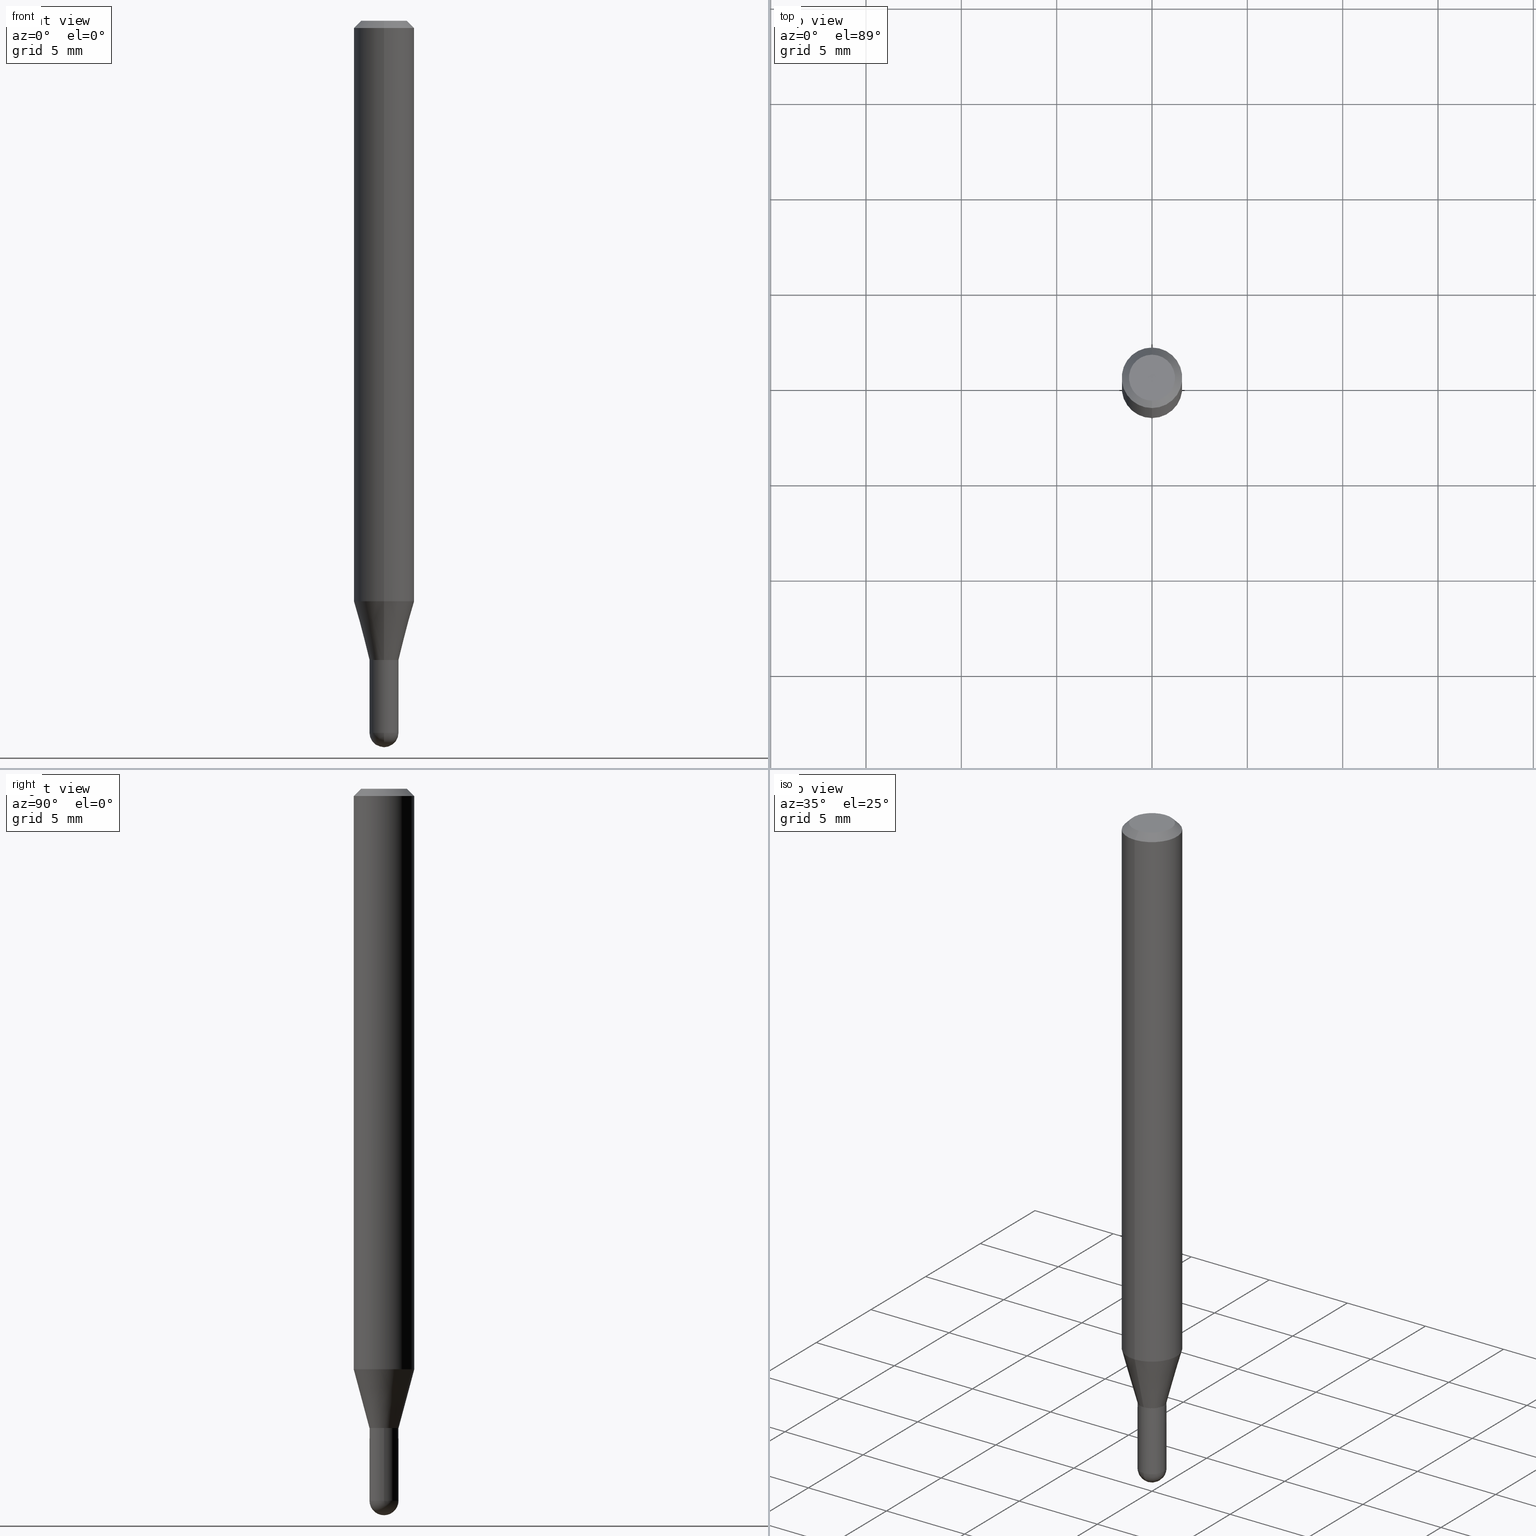
[diagram: canonical four-view strip — front | top / right | iso, engineering-drawing reading convention]
A machine part, canonical four-view strip (front | top / right | iso — engineering-drawing reading convention). The complete STEP part file that produces these views, byte-faithful:
ISO-10303-21;
HEADER;
FILE_DESCRIPTION (( 'STEP AP203' ),
    '1' );
FILE_NAME ('01483.STEP',
    '2024-03-07T21:32:08',
    ( '' ),
    ( '' ),
    'SwSTEP 2.0',
    'SolidWorks 2023',
    '' );
FILE_SCHEMA (( 'CONFIG_CONTROL_DESIGN' ));
ENDSEC;

DATA;
#1 = PERSON_AND_ORGANIZATION ( #431, #402 ) ;
#2 = CIRCLE ( 'NONE', #208, 0.03000000000000020012 ) ;
#3 = VECTOR ( 'NONE', #347, 39.37007874015747433 ) ;
#4 = DATE_AND_TIME ( #91, #388 ) ;
#5 = EDGE_CURVE ( 'NONE', #104, #284, #362, .T. ) ;
#6 = VERTEX_POINT ( 'NONE', #336 ) ;
#7 = LINE ( 'NONE', #310, #445 ) ;
#8 = PERSON_AND_ORGANIZATION_ROLE ( 'classification_officer' ) ;
#9 = DIRECTION ( 'NONE',  ( -6.982962677686265922E-15, -1.000000000000000000, 0.000000000000000000 ) ) ;
#10 = CC_DESIGN_PERSON_AND_ORGANIZATION_ASSIGNMENT ( #231, #8, ( #446 ) ) ;
#11 = ORIENTED_EDGE ( 'NONE', *, *, #369, .T. ) ;
#12 = ORIENTED_EDGE ( 'NONE', *, *, #25, .T. ) ;
#13 = EDGE_CURVE ( 'NONE', #86, #257, #282, .T. ) ;
#14 = CIRCLE ( 'NONE', #179, 0.02999999999999992256 ) ;
#15 = DIRECTION ( 'NONE',  ( -2.445459950379643973E-29, 3.491494020860651909E-15, 1.000000000000000000 ) ) ;
#16 = CC_DESIGN_APPROVAL ( #188, ( #446 ) ) ;
#17 = ORIENTED_EDGE ( 'NONE', *, *, #369, .F. ) ;
#18 = DIRECTION ( 'NONE',  ( -2.445459950379643973E-29, 3.491494020860651909E-15, 1.000000000000000000 ) ) ;
#19 = ORIENTED_EDGE ( 'NONE', *, *, #58, .T. ) ;
#20 = CARTESIAN_POINT ( 'NONE',  ( 0.000000000000000000, 0.000000000000000000, 0.000000000000000000 ) ) ;
#21 = ORIENTED_EDGE ( 'NONE', *, *, #235, .T. ) ;
#22 = CARTESIAN_POINT ( 'NONE',  ( 3.228007134501130213E-29, -4.608772107536060568E-15, -1.320000000000000062 ) ) ;
#23 = ORIENTED_EDGE ( 'NONE', *, *, #432, .T. ) ;
#24 = CARTESIAN_POINT ( 'NONE',  ( 0.000000000000000000, 0.000000000000000000, 0.000000000000000000 ) ) ;
#25 = EDGE_CURVE ( 'NONE', #284, #497, #265, .T. ) ;
#26 = ORIENTED_EDGE ( 'NONE', *, *, #90, .F. ) ;
#27 = DIRECTION ( 'NONE',  ( -6.982962677686265922E-15, -1.000000000000000000, 0.000000000000000000 ) ) ;
#28 = ORIENTED_EDGE ( 'NONE', *, *, #412, .F. ) ;
#29 = VECTOR ( 'NONE', #306, 39.37007874015748143 ) ;
#30 = VERTEX_POINT ( 'NONE', #107 ) ;
#31 = LINE ( 'NONE', #177, #79 ) ;
#32 = DIRECTION ( 'NONE',  ( -2.445468806185136597E-29, 3.491481338843145583E-15, 1.000000000000000000 ) ) ;
#33 = CARTESIAN_POINT ( 'NONE',  ( -0.03000000000000000583, -4.657453646958158772E-15, -1.470000000000000417 ) ) ;
#34 = DIRECTION ( 'NONE',  ( -1.000000000000000000, 6.982962677686265922E-15, -4.876176775795935793E-29 ) ) ;
#35 = CARTESIAN_POINT ( 'NONE',  ( -2.059973989917125720E-16, -0.02950000000000460934, -1.320000000000000062 ) ) ;
#36 = AXIS2_PLACEMENT_3D ( 'NONE', #400, #244, #174 ) ;
#37 = ADVANCED_FACE ( 'NONE', ( #385 ), #118, .T. ) ;
#38 = CARTESIAN_POINT ( 'NONE',  ( 0.000000000000000000, 0.000000000000000000, 0.000000000000000000 ) ) ;
#39 = ADVANCED_FACE ( 'NONE', ( #455 ), #178, .T. ) ;
#40 = AXIS2_PLACEMENT_3D ( 'NONE', #173, #408, #508 ) ;
#41 = AXIS2_PLACEMENT_3D ( 'NONE', #327, #375, #499 ) ;
#42 = CARTESIAN_POINT ( 'NONE',  ( 3.228007134501130773E-29, -4.608772107536062145E-15, -1.320000000000000506 ) ) ;
#43 = VERTEX_POINT ( 'NONE', #33 ) ;
#44 = ORIENTED_EDGE ( 'NONE', *, *, #155, .T. ) ;
#45 = DIRECTION ( 'NONE',  ( 1.000000000000000000, -6.982962677686268288E-15, 0.000000000000000000 ) ) ;
#46 = DATE_TIME_ROLE ( 'classification_date' ) ;
#47 = ADVANCED_FACE ( 'NONE', ( #150 ), #465, .F. ) ;
#48 = ORIENTED_EDGE ( 'NONE', *, *, #163, .T. ) ;
#49 = ADVANCED_FACE ( 'NONE', ( #109 ), #340, .T. ) ;
#50 = PERSON_AND_ORGANIZATION ( #431, #402 ) ;
#51 = AXIS2_PLACEMENT_3D ( 'NONE', #456, #216, #501 ) ;
#52 = ORIENTED_EDGE ( 'NONE', *, *, #25, .F. ) ;
#53 = SPHERICAL_SURFACE ( 'NONE', #374, 0.03000000000000011685 ) ;
#54 = DIRECTION ( 'NONE',  ( 0.000000000000000000, 0.000000000000000000, 1.000000000000000000 ) ) ;
#55 = CC_DESIGN_PERSON_AND_ORGANIZATION_ASSIGNMENT ( #481, #470, ( #314 ) ) ;
#56 = DATE_TIME_ROLE ( 'creation_date' ) ;
#57 = ORIENTED_EDGE ( 'NONE', *, *, #464, .T. ) ;
#58 = EDGE_CURVE ( 'NONE', #284, #30, #461, .T. ) ;
#59 = DIRECTION ( 'NONE',  ( -4.851104656540964275E-15, -0.7071067811865500152, -0.7071067811865450192 ) ) ;
#60 = VECTOR ( 'NONE', #212, 39.37007874015748143 ) ;
#61 = ORIENTED_EDGE ( 'NONE', *, *, #122, .T. ) ;
#62 = CARTESIAN_POINT ( 'NONE',  ( -2.094888803305571076E-16, -0.03000000000000481101, -1.320000000000000506 ) ) ;
#63 = CARTESIAN_POINT ( 'NONE',  ( 3.228007134501130773E-29, -4.608772107536062145E-15, -1.320000000000000506 ) ) ;
#64 = CARTESIAN_POINT ( 'NONE',  ( 3.592273646224612654E-29, -5.136151508496865947E-15, -1.470000000000000195 ) ) ;
#65 = FACE_OUTER_BOUND ( 'NONE', #489, .T. ) ;
#66 = EDGE_LOOP ( 'NONE', ( #453, #133, #166, #392 ) ) ;
#67 = CARTESIAN_POINT ( 'NONE',  ( 4.364351673553919652E-16, 0.06249999999999995143, -0.01500000000000022669 ) ) ;
#68 = EDGE_LOOP ( 'NONE', ( #206, #324, #168, #444 ) ) ;
#69 = CARTESIAN_POINT ( 'NONE',  ( 3.668189925569468499E-31, -5.237241031290981167E-17, -0.01500000000000000812 ) ) ;
#70 = CARTESIAN_POINT ( 'NONE',  ( -2.059973989917125720E-16, -0.02950000000000460934, -1.320000000000000062 ) ) ;
#71 = CIRCLE ( 'NONE', #352, 0.03000000000000000583 ) ;
#72 = FACE_OUTER_BOUND ( 'NONE', #512, .T. ) ;
#73 = AXIS2_PLACEMENT_3D ( 'NONE', #101, #439, #328 ) ;
#74 = ADVANCED_FACE ( 'NONE', ( #72 ), #343, .T. ) ;
#75 = ADVANCED_FACE ( 'NONE', ( #134 ), #287, .F. ) ;
#76 = ADVANCED_FACE ( 'NONE', ( #92 ), #303, .T. ) ;
#77 = DIRECTION ( 'NONE',  ( -6.982962677686265133E-15, -1.000000000000000000, 0.000000000000000000 ) ) ;
#78 = APPROVAL_STATUS ( 'not_yet_approved' ) ;
#79 = VECTOR ( 'NONE', #172, 39.37007874015748143 ) ;
#80 = SECURITY_CLASSIFICATION_LEVEL ( 'unclassified' ) ;
#81 = EDGE_CURVE ( 'NONE', #30, #175, #293, .T. ) ;
#82 = DATE_AND_TIME ( #430, #475 ) ;
#83 = ORIENTED_EDGE ( 'NONE', *, *, #256, .F. ) ;
#84 = CARTESIAN_POINT ( 'NONE',  ( 3.228018824164380442E-29, -4.608755367272952437E-15, -1.320000000000000062 ) ) ;
#85 =( NAMED_UNIT ( * ) PLANE_ANGLE_UNIT ( ) SI_UNIT ( $, .RADIAN. ) );
#86 = VERTEX_POINT ( 'NONE', #211 ) ;
#87 = CIRCLE ( 'NONE', #299, 0.03000000000000020012 ) ;
#88 = PRODUCT_DEFINITION ( 'UNKNOWN', '', #314, #229 ) ;
#89 = AXIS2_PLACEMENT_3D ( 'NONE', #407, #18, #27 ) ;
#90 = EDGE_CURVE ( 'NONE', #164, #364, #427, .T. ) ;
#91 = CALENDAR_DATE ( 2024, 7, 3 ) ;
#92 = FACE_OUTER_BOUND ( 'NONE', #280, .T. ) ;
#93 = CARTESIAN_POINT ( 'NONE',  ( 2.131628207280637224E-16, 0.02999999999999558922, -1.320000000000000506 ) ) ;
#94 = ORIENTED_EDGE ( 'NONE', *, *, #405, .T. ) ;
#95 = DIRECTION ( 'NONE',  ( 7.105427357601000281E-15, 1.000000000000000000, 0.000000000000000000 ) ) ;
#96 = AXIS2_PLACEMENT_3D ( 'NONE', #269, #458, #34 ) ;
#97 = APPROVAL_PERSON_ORGANIZATION ( #205, #145, #359 ) ;
#98 = LINE ( 'NONE', #251, #322 ) ;
#99 = EDGE_LOOP ( 'NONE', ( #482, #157, #116, #451 ) ) ;
#100 = DIRECTION ( 'NONE',  ( -2.445459950379643973E-29, 3.491494020860651909E-15, 1.000000000000000000 ) ) ;
#101 = CARTESIAN_POINT ( 'NONE',  ( 2.931393259063662766E-29, -4.185283032430394746E-15, -1.198708348754016662 ) ) ;
#102 = PRODUCT_RELATED_PRODUCT_CATEGORY ( 'detail', '', ( #495 ) ) ;
#103 = DIRECTION ( 'NONE',  ( -6.982962677686265922E-15, -1.000000000000000000, 0.000000000000000000 ) ) ;
#104 = VERTEX_POINT ( 'NONE', #423 ) ;
#105 = ORIENTED_EDGE ( 'NONE', *, *, #286, .F. ) ;
#106 = CIRCLE ( 'NONE', #376, 0.03000000000000011685 ) ;
#107 = CARTESIAN_POINT ( 'NONE',  ( 0.02999999999999999889, -4.818244247603540754E-15, -1.320000000000000062 ) ) ;
#108 = DIRECTION ( 'NONE',  ( -2.445459950379643973E-29, 3.491494020860651909E-15, 1.000000000000000000 ) ) ;
#109 = FACE_OUTER_BOUND ( 'NONE', #68, .T. ) ;
#110 = CARTESIAN_POINT ( 'NONE',  ( 0.03000000000000000583, -2.094888803305880457E-16, 1.462853032738781053E-30 ) ) ;
#111 = VECTOR ( 'NONE', #113, 39.37007874015748143 ) ;
#112 = AXIS2_PLACEMENT_3D ( 'NONE', #281, #325, #240 ) ;
#113 = DIRECTION ( 'NONE',  ( -2.445459950379643973E-29, 3.491494020860651909E-15, 1.000000000000000000 ) ) ;
#114 = DIRECTION ( 'NONE',  ( -6.982962677686265922E-15, -1.000000000000000000, 0.000000000000000000 ) ) ;
#115 = DIRECTION ( 'NONE',  ( -2.445459950379643973E-29, 3.491494020860651909E-15, 1.000000000000000000 ) ) ;
#116 = ORIENTED_EDGE ( 'NONE', *, *, #412, .T. ) ;
#117 = CARTESIAN_POINT ( 'NONE',  ( 3.594839145092151380E-29, -5.132477568099425596E-15, -1.470000000000000417 ) ) ;
#118 = CONICAL_SURFACE ( 'NONE', #401, 0.06250000000000000000, 0.7853981633974483900 ) ;
#119 = ORIENTED_EDGE ( 'NONE', *, *, #260, .F. ) ;
#120 = CYLINDRICAL_SURFACE ( 'NONE', #434, 0.03000000000000000583 ) ;
#121 = APPLICATION_PROTOCOL_DEFINITION ( 'international standard', 'config_control_design', 1994, #463 ) ;
#122 = EDGE_CURVE ( 'NONE', #175, #30, #320, .T. ) ;
#123 = ORIENTED_EDGE ( 'NONE', *, *, #464, .F. ) ;
#124 = DATE_AND_TIME ( #391, #149 ) ;
#125 = VERTEX_POINT ( 'NONE', #275 ) ;
#126 = EDGE_CURVE ( 'NONE', #390, #6, #7, .T. ) ;
#127 = CARTESIAN_POINT ( 'NONE',  ( 3.594839145092151380E-29, -5.132477568099425596E-15, -1.470000000000000417 ) ) ;
#128 = APPLICATION_CONTEXT ( 'configuration controlled 3d designs of mechanical parts and assemblies' ) ;
#129 = DATE_AND_TIME ( #165, #185 ) ;
#130 = ORIENTED_EDGE ( 'NONE', *, *, #326, .T. ) ;
#131 = AXIS2_PLACEMENT_3D ( 'NONE', #468, #500, #421 ) ;
#132 = AXIS2_PLACEMENT_3D ( 'NONE', #271, #54, #195 ) ;
#133 = ORIENTED_EDGE ( 'NONE', *, *, #326, .F. ) ;
#134 = FACE_OUTER_BOUND ( 'NONE', #254, .T. ) ;
#135 = DIRECTION ( 'NONE',  ( -2.445459950379643973E-29, 3.491494020860651909E-15, 1.000000000000000000 ) ) ;
#136 = DIRECTION ( 'NONE',  ( 1.000000000000000000, -6.982962677686268288E-15, 0.000000000000000000 ) ) ;
#137 = CARTESIAN_POINT ( 'NONE',  ( 3.316907271900976096E-16, 0.04749999999999999362, -1.702758245888807416E-16 ) ) ;
#138 = EDGE_CURVE ( 'NONE', #390, #485, #87, .T. ) ;
#139 = LINE ( 'NONE', #372, #60 ) ;
#140 = ADVANCED_FACE ( 'NONE', ( #270 ), #53, .T. ) ;
#141 = CIRCLE ( 'NONE', #51, 0.06250000000000000000 ) ;
#142 = DIRECTION ( 'NONE',  ( -6.982962677686265922E-15, -1.000000000000000000, 3.491494020860651515E-15 ) ) ;
#143 = ORIENTED_EDGE ( 'NONE', *, *, #193, .F. ) ;
#144 = CARTESIAN_POINT ( 'NONE',  ( 3.668189925569468499E-31, -5.237241031290981167E-17, -0.01500000000000000812 ) ) ;
#145 = APPROVAL ( #78, 'UNSPECIFIED' ) ;
#146 = DIRECTION ( 'NONE',  ( -2.445459950379643973E-29, 3.491494020860651909E-15, 1.000000000000000000 ) ) ;
#147 = LINE ( 'NONE', #387, #209 ) ;
#148 = EDGE_CURVE ( 'NONE', #485, #393, #357, .T. ) ;
#149 = LOCAL_TIME ( 16, 32, 7.000000000000000000, #425 ) ;
#150 = FACE_OUTER_BOUND ( 'NONE', #346, .T. ) ;
#151 = DIRECTION ( 'NONE',  ( -2.445459950379643973E-29, 3.491494020860651909E-15, 1.000000000000000000 ) ) ;
#152 = AXIS2_PLACEMENT_3D ( 'NONE', #220, #308, #381 ) ;
#153 = CARTESIAN_POINT ( 'NONE',  ( 3.228007134501130773E-29, -4.608772107536062145E-15, -1.320000000000000506 ) ) ;
#154 = CARTESIAN_POINT ( 'NONE',  ( 3.286260152890780344E-16, 0.02999999999999559616, -1.320000000000000506 ) ) ;
#155 = EDGE_CURVE ( 'NONE', #485, #390, #2, .T. ) ;
#156 = APPROVAL_STATUS ( 'not_yet_approved' ) ;
#157 = ORIENTED_EDGE ( 'NONE', *, *, #148, .T. ) ;
#158 = ORIENTED_EDGE ( 'NONE', *, *, #235, .F. ) ;
#159 = MECHANICAL_CONTEXT ( 'NONE', #128, 'mechanical' ) ;
#160 = AXIS2_PLACEMENT_3D ( 'NONE', #84, #307, #45 ) ;
#161 = ADVANCED_BREP_SHAPE_REPRESENTATION ( '01483', ( #409, #232, #132 ), #344 ) ;
#162 = CC_DESIGN_APPROVAL ( #145, ( #314 ) ) ;
#163 = EDGE_CURVE ( 'NONE', #43, #104, #71, .T. ) ;
#164 = VERTEX_POINT ( 'NONE', #348 ) ;
#165 = CALENDAR_DATE ( 2024, 7, 3 ) ;
#166 = ORIENTED_EDGE ( 'NONE', *, *, #415, .T. ) ;
#167 = ADVANCED_FACE ( 'NONE', ( #476 ), #120, .T. ) ;
#168 = ORIENTED_EDGE ( 'NONE', *, *, #432, .F. ) ;
#169 = CARTESIAN_POINT ( 'NONE',  ( -4.364351673553912750E-16, -0.06250000000000005551, -0.01499999999999979128 ) ) ;
#170 = AXIS2_PLACEMENT_3D ( 'NONE', #332, #365, #217 ) ;
#171 = DIRECTION ( 'NONE',  ( 2.445459950379643973E-29, -3.491494020860651909E-15, -1.000000000000000000 ) ) ;
#172 = DIRECTION ( 'NONE',  ( -2.445468806185136877E-29, 3.491481338843145188E-15, 1.000000000000000000 ) ) ;
#173 = CARTESIAN_POINT ( 'NONE',  ( 2.931393259063662766E-29, -4.185283032430394746E-15, -1.198708348754016662 ) ) ;
#174 = DIRECTION ( 'NONE',  ( -6.982962677686265922E-15, -1.000000000000000000, 0.000000000000000000 ) ) ;
#175 = VERTEX_POINT ( 'NONE', #285 ) ;
#176 = DIRECTION ( 'NONE',  ( -2.445468806185136597E-29, 3.491481338843145583E-15, 1.000000000000000000 ) ) ;
#177 = CARTESIAN_POINT ( 'NONE',  ( -0.03000000000000000583, 2.131628207280300972E-16, -1.475680527076471882E-30 ) ) ;
#178 = CONICAL_SURFACE ( 'NONE', #338, 0.02949999999999999845, 0.7853981633974739252 ) ;
#179 = AXIS2_PLACEMENT_3D ( 'NONE', #296, #182, #103 ) ;
#180 = LINE ( 'NONE', #496, #191 ) ;
#181 = ORIENTED_EDGE ( 'NONE', *, *, #5, .T. ) ;
#182 = DIRECTION ( 'NONE',  ( -2.445459950379643973E-29, 3.491494020860651909E-15, 1.000000000000000000 ) ) ;
#183 = EDGE_CURVE ( 'NONE', #364, #164, #467, .T. ) ;
#184 = CC_DESIGN_APPROVAL ( #507, ( #88 ) ) ;
#185 = LOCAL_TIME ( 16, 32, 7.000000000000000000, #433 ) ;
#186 = CARTESIAN_POINT ( 'NONE',  ( 2.131628207280663601E-16, 0.02999999999999492656, -1.470000000000000417 ) ) ;
#187 = ADVANCED_FACE ( 'NONE', ( #397 ), #491, .T. ) ;
#188 = APPROVAL ( #278, 'UNSPECIFIED' ) ;
#189 = CARTESIAN_POINT ( 'NONE',  ( 3.668189925569468499E-31, -5.237241031290981167E-17, -0.01500000000000000812 ) ) ;
#190 = CC_DESIGN_PERSON_AND_ORGANIZATION_ASSIGNMENT ( #50, #355, ( #314 ) ) ;
#191 = VECTOR ( 'NONE', #337, 39.37007874015748854 ) ;
#192 = LINE ( 'NONE', #70, #29 ) ;
#193 = EDGE_CURVE ( 'NONE', #364, #86, #98, .T. ) ;
#194 = DIRECTION ( 'NONE',  ( -2.445459950379643973E-29, 3.491494020860651909E-15, 1.000000000000000000 ) ) ;
#195 = DIRECTION ( 'NONE',  ( 1.000000000000000000, 0.000000000000000000, 0.000000000000000000 ) ) ;
#196 = ORIENTED_EDGE ( 'NONE', *, *, #122, .F. ) ;
#197 = DIRECTION ( 'NONE',  ( 1.000000000000000000, -6.982962677686266711E-15, 0.000000000000000000 ) ) ;
#198 = PERSON_AND_ORGANIZATION ( #431, #402 ) ;
#199 = EDGE_LOOP ( 'NONE', ( #288, #398, #26, #329 ) ) ;
#200 = CLOSED_SHELL ( 'NONE', ( #469, #443, #74, #49, #315, #76, #210, #37, #379, #245, #39, #75 ) ) ;
#201 = APPROVAL_ROLE ( '' ) ;
#202 = CIRCLE ( 'NONE', #36, 0.02999999999999992256 ) ;
#203 = AXIS2_PLACEMENT_3D ( 'NONE', #249, #100, #253 ) ;
#204 = ORIENTED_EDGE ( 'NONE', *, *, #371, .T. ) ;
#205 = PERSON_AND_ORGANIZATION ( #431, #402 ) ;
#206 = ORIENTED_EDGE ( 'NONE', *, *, #90, .T. ) ;
#207 = FACE_OUTER_BOUND ( 'NONE', #377, .T. ) ;
#208 = AXIS2_PLACEMENT_3D ( 'NONE', #42, #194, #345 ) ;
#209 = VECTOR ( 'NONE', #459, 39.37007874015748143 ) ;
#210 = ADVANCED_FACE ( 'NONE', ( #406 ), #370, .T. ) ;
#211 = CARTESIAN_POINT ( 'NONE',  ( 4.440892098500920998E-16, 0.06249999999999995143, -0.01500000000000022669 ) ) ;
#212 = DIRECTION ( 'NONE',  ( 5.024295867788190974E-15, 0.7071067811865681119, 0.7071067811865270336 ) ) ;
#213 = CARTESIAN_POINT ( 'NONE',  ( 3.228018824164380442E-29, -4.608755367272952437E-15, -1.320000000000000062 ) ) ;
#214 = PRODUCT_DEFINITION_SHAPE ( 'NONE', 'NONE',  #88 ) ;
#215 = VERTEX_POINT ( 'NONE', #487 ) ;
#216 = DIRECTION ( 'NONE',  ( -2.445459950379643973E-29, 3.491494020860651909E-15, 1.000000000000000000 ) ) ;
#217 = DIRECTION ( 'NONE',  ( -6.982962677686265922E-15, -1.000000000000000000, 0.000000000000000000 ) ) ;
#218 = DIRECTION ( 'NONE',  ( 4.937700262164548042E-15, 0.7071067811865451302, -0.7071067811865499042 ) ) ;
#219 = DIRECTION ( 'NONE',  ( -2.445459950379643973E-29, 3.491494020860651909E-15, 1.000000000000000000 ) ) ;
#220 = CARTESIAN_POINT ( 'NONE',  ( 3.592273646224612654E-29, -5.136151508496865947E-15, -1.470000000000000195 ) ) ;
#221 = AXIS2_PLACEMENT_3D ( 'NONE', #24, #15, #435 ) ;
#222 = DIRECTION ( 'NONE',  ( -2.445459950379643973E-29, 3.491494020860651909E-15, 1.000000000000000000 ) ) ;
#223 = DIRECTION ( 'NONE',  ( -6.982962677686265922E-15, -1.000000000000000000, 3.491494020860651909E-15 ) ) ;
#224 = CC_DESIGN_DATE_AND_TIME_ASSIGNMENT ( #82, #56, ( #88 ) ) ;
#225 = CARTESIAN_POINT ( 'NONE',  ( 0.000000000000000000, 0.000000000000000000, 0.000000000000000000 ) ) ;
#226 = CLOSED_SHELL ( 'NONE', ( #167, #187, #47, #140, #420 ) ) ;
#227 = CARTESIAN_POINT ( 'NONE',  ( 2.131628207280304916E-16, 0.03000000000000006481, -1.047448206258197713E-16 ) ) ;
#228 = VECTOR ( 'NONE', #59, 39.37007874015748143 ) ;
#229 = DESIGN_CONTEXT ( 'detailed design', #463, 'design' ) ;
#230 =( NAMED_UNIT ( * ) SI_UNIT ( $, .STERADIAN. ) SOLID_ANGLE_UNIT ( ) );
#231 = PERSON_AND_ORGANIZATION ( #431, #402 ) ;
#232 = MANIFOLD_SOLID_BREP ( 'Body-Move/Copy2[2]', #200 ) ;
#233 = CALENDAR_DATE ( 2024, 7, 3 ) ;
#234 = CARTESIAN_POINT ( 'NONE',  ( 3.592273646224612654E-29, -5.136151508496865947E-15, -1.470000000000000195 ) ) ;
#235 = EDGE_CURVE ( 'NONE', #497, #43, #457, .T. ) ;
#236 = AXIS2_PLACEMENT_3D ( 'NONE', #144, #171, #321 ) ;
#237 = AXIS2_PLACEMENT_3D ( 'NONE', #378, #32, #492 ) ;
#238 = ORIENTED_EDGE ( 'NONE', *, *, #13, .F. ) ;
#239 = ORIENTED_EDGE ( 'NONE', *, *, #183, .F. ) ;
#240 = DIRECTION ( 'NONE',  ( -6.982962677686265133E-15, -1.000000000000000000, 0.000000000000000000 ) ) ;
#241 = ORIENTED_EDGE ( 'NONE', *, *, #183, .T. ) ;
#242 = DIRECTION ( 'NONE',  ( -2.445459950379643973E-29, 3.491494020860651909E-15, 1.000000000000000000 ) ) ;
#243 = DIRECTION ( 'NONE',  ( -6.982962677686265922E-15, -1.000000000000000000, 0.000000000000000000 ) ) ;
#244 = DIRECTION ( 'NONE',  ( -2.445459950379643973E-29, 3.491494020860651909E-15, 1.000000000000000000 ) ) ;
#245 = ADVANCED_FACE ( 'NONE', ( #247 ), #316, .F. ) ;
#246 = VERTEX_POINT ( 'NONE', #272 ) ;
#247 = FACE_OUTER_BOUND ( 'NONE', #502, .T. ) ;
#248 = DIRECTION ( 'NONE',  ( -2.445459950379643973E-29, 3.491494020860651909E-15, 1.000000000000000000 ) ) ;
#249 = CARTESIAN_POINT ( 'NONE',  ( 2.166608357450673207E-46, -3.093364961634872057E-32, -8.859717195999548619E-18 ) ) ;
#250 = AXIS2_PLACEMENT_3D ( 'NONE', #471, #108, #223 ) ;
#251 = CARTESIAN_POINT ( 'NONE',  ( 4.440892098500625669E-16, 0.06250000000000000000, -2.182183763037907443E-16 ) ) ;
#252 = APPROVAL_DATE_TIME ( #129, #188 ) ;
#253 = DIRECTION ( 'NONE',  ( -6.982962677686266711E-15, -1.000000000000000000, 3.491494020860652304E-15 ) ) ;
#254 = EDGE_LOOP ( 'NONE', ( #478, #438, #447, #11 ) ) ;
#255 = DIRECTION ( 'NONE',  ( 1.000000000000000000, -6.982962677686266711E-15, 0.000000000000000000 ) ) ;
#256 = EDGE_CURVE ( 'NONE', #396, #480, #274, .T. ) ;
#257 = VERTEX_POINT ( 'NONE', #169 ) ;
#258 = DIRECTION ( 'NONE',  ( 2.445459950379643973E-29, -3.491494020860651909E-15, -1.000000000000000000 ) ) ;
#259 = ORIENTED_EDGE ( 'NONE', *, *, #510, .T. ) ;
#260 = EDGE_CURVE ( 'NONE', #485, #364, #323, .T. ) ;
#261 = CARTESIAN_POINT ( 'NONE',  ( 2.131628207280609860E-16, 0.02999999999999521105, -1.319500000000000117 ) ) ;
#262 = EDGE_LOOP ( 'NONE', ( #143, #241, #373, #238 ) ) ;
#263 = AXIS2_PLACEMENT_3D ( 'NONE', #426, #242, #9 ) ;
#264 = DIRECTION ( 'NONE',  ( -2.445468806185136877E-29, 3.491481338843145188E-15, 1.000000000000000000 ) ) ;
#265 = CIRCLE ( 'NONE', #131, 0.03000000000000000583 ) ;
#266 = CONICAL_SURFACE ( 'NONE', #170, 0.02949999999999999845, 0.7853981633974739252 ) ;
#267 = CC_DESIGN_SECURITY_CLASSIFICATION ( #446, ( #314 ) ) ;
#268 = CC_DESIGN_PERSON_AND_ORGANIZATION_ASSIGNMENT ( #436, #511, ( #495 ) ) ;
#269 = CARTESIAN_POINT ( 'NONE',  ( 2.094888803306202411E-16, 0.02999999999999539146, -1.320000000000000062 ) ) ;
#270 = FACE_OUTER_BOUND ( 'NONE', #312, .T. ) ;
#271 = CARTESIAN_POINT ( 'NONE',  ( 0.000000000000000000, 0.000000000000000000, 0.000000000000000000 ) ) ;
#272 = CARTESIAN_POINT ( 'NONE',  ( 3.664354960976397927E-29, -5.242732918860881858E-15, -1.500000000000000444 ) ) ;
#273 = DIRECTION ( 'NONE',  ( -2.445468806185136597E-29, 3.491481338843145583E-15, 1.000000000000000000 ) ) ;
#274 = CIRCLE ( 'NONE', #263, 0.02949999999999999845 ) ;
#275 = CARTESIAN_POINT ( 'NONE',  ( -3.773273898774340269E-16, -0.04749999999999999362, 1.569862487948814010E-16 ) ) ;
#276 = PERSON_AND_ORGANIZATION_ROLE ( 'creator' ) ;
#277 = DIRECTION ( 'NONE',  ( -6.982962677686265922E-15, -1.000000000000000000, 0.000000000000000000 ) ) ;
#278 = APPROVAL_STATUS ( 'not_yet_approved' ) ;
#279 = ORIENTED_EDGE ( 'NONE', *, *, #349, .F. ) ;
#280 = EDGE_LOOP ( 'NONE', ( #119, #44, #204, #239 ) ) ;
#281 = CARTESIAN_POINT ( 'NONE',  ( 3.592273646224612654E-29, -5.136151508496865947E-15, -1.470000000000000195 ) ) ;
#282 = CIRCLE ( 'NONE', #493, 0.06250000000000000000 ) ;
#283 = APPLICATION_PROTOCOL_DEFINITION ( 'international standard', 'config_control_design', 1994, #128 ) ;
#284 = VERTEX_POINT ( 'NONE', #450 ) ;
#285 = CARTESIAN_POINT ( 'NONE',  ( -0.02999999999999999889, -4.657453646958158772E-15, -1.320000000000000062 ) ) ;
#286 = EDGE_CURVE ( 'NONE', #396, #393, #139, .T. ) ;
#287 = CYLINDRICAL_SURFACE ( 'NONE', #331, 0.03000000000000006481 ) ;
#288 = ORIENTED_EDGE ( 'NONE', *, *, #138, .T. ) ;
#289 = DIRECTION ( 'NONE',  ( 6.982962677686265922E-15, 1.000000000000000000, -3.491494020860651909E-15 ) ) ;
#290 = DIRECTION ( 'NONE',  ( 1.000000000000000000, -6.982962677686266711E-15, 4.876176775795935793E-29 ) ) ;
#291 = ORIENTED_EDGE ( 'NONE', *, *, #5, .F. ) ;
#292 = CARTESIAN_POINT ( 'NONE',  ( -4.287811248607203282E-16, -0.06250000000000005551, -0.01499999999999979128 ) ) ;
#293 = CIRCLE ( 'NONE', #466, 0.02999999999999999889 ) ;
#294 = CIRCLE ( 'NONE', #203, 0.04749999999999999362 ) ;
#295 = ORIENTED_EDGE ( 'NONE', *, *, #58, .F. ) ;
#296 = CARTESIAN_POINT ( 'NONE',  ( 3.226784404525941574E-29, -4.607026360525630746E-15, -1.319500000000000117 ) ) ;
#297 = DIRECTION ( 'NONE',  ( 6.982962677686265922E-15, 1.000000000000000000, -3.483106191921935554E-15 ) ) ;
#298 = FACE_OUTER_BOUND ( 'NONE', #199, .T. ) ;
#299 = AXIS2_PLACEMENT_3D ( 'NONE', #153, #115, #277 ) ;
#300 = CARTESIAN_POINT ( 'NONE',  ( 3.594839145092151380E-29, -5.132477568099425596E-15, -1.470000000000000417 ) ) ;
#301 = DIRECTION ( 'NONE',  ( -6.982962677686265922E-15, -1.000000000000000000, 3.491494020860651909E-15 ) ) ;
#302 =( LENGTH_UNIT ( ) NAMED_UNIT ( * ) SI_UNIT ( $, .METRE. ) );
#303 = CONICAL_SURFACE ( 'NONE', #383, 0.03000000000000020012, 0.2617993877991577345 ) ;
#304 = CONICAL_SURFACE ( 'NONE', #89, 0.03000000000000020012, 0.2617993877991577345 ) ;
#305 = ORIENTED_EDGE ( 'NONE', *, *, #333, .T. ) ;
#306 = DIRECTION ( 'NONE',  ( -4.937700262164674260E-15, -0.7071067811865632269, 0.7071067811865319186 ) ) ;
#307 = DIRECTION ( 'NONE',  ( -2.445468806185136597E-29, 3.491481338843145583E-15, 1.000000000000000000 ) ) ;
#308 = DIRECTION ( 'NONE',  ( -1.000000000000000000, 6.982962677686265922E-15, -4.883557194083112340E-29 ) ) ;
#309 = ORIENTED_EDGE ( 'NONE', *, *, #415, .F. ) ;
#310 = CARTESIAN_POINT ( 'NONE',  ( -2.094888803305884401E-16, -0.03000000000000006481, 1.047448206258197713E-16 ) ) ;
#311 = APPROVAL_DATE_TIME ( #4, #507 ) ;
#312 = EDGE_LOOP ( 'NONE', ( #319, #259, #367, #158 ) ) ;
#313 = DIRECTION ( 'NONE',  ( -2.445459950379643973E-29, 3.491494020860651909E-15, 1.000000000000000000 ) ) ;
#314 = PRODUCT_DEFINITION_FORMATION_WITH_SPECIFIED_SOURCE ( 'ANY', '', #495, .NOT_KNOWN. ) ;
#315 = ADVANCED_FACE ( 'NONE', ( #298 ), #304, .T. ) ;
#316 = PLANE ( 'NONE',  #250 ) ;
#317 = CC_DESIGN_PERSON_AND_ORGANIZATION_ASSIGNMENT ( #1, #276, ( #88 ) ) ;
#318 = PERSON_AND_ORGANIZATION ( #431, #402 ) ;
#319 = ORIENTED_EDGE ( 'NONE', *, *, #405, .F. ) ;
#320 = CIRCLE ( 'NONE', #160, 0.02999999999999999889 ) ;
#321 = DIRECTION ( 'NONE',  ( 6.982962677686265922E-15, 1.000000000000000000, -3.483106191921935554E-15 ) ) ;
#322 = VECTOR ( 'NONE', #135, 39.37007874015748143 ) ;
#323 = LINE ( 'NONE', #93, #3 ) ;
#324 = ORIENTED_EDGE ( 'NONE', *, *, #193, .T. ) ;
#325 = DIRECTION ( 'NONE',  ( 1.000000000000000000, -6.982962677686265133E-15, 4.883557194083111780E-29 ) ) ;
#326 = EDGE_CURVE ( 'NONE', #215, #125, #419, .T. ) ;
#327 = CARTESIAN_POINT ( 'NONE',  ( 2.166608357450673207E-46, -3.093364961634872057E-32, -8.859717195999548619E-18 ) ) ;
#328 = DIRECTION ( 'NONE',  ( -6.982962677686265922E-15, -1.000000000000000000, 4.370956789862821150E-15 ) ) ;
#329 = ORIENTED_EDGE ( 'NONE', *, *, #371, .F. ) ;
#330 = CYLINDRICAL_SURFACE ( 'NONE', #237, 0.03000000000000000583 ) ;
#331 = AXIS2_PLACEMENT_3D ( 'NONE', #440, #488, #142 ) ;
#332 = CARTESIAN_POINT ( 'NONE',  ( 3.228007134501130213E-29, -4.608772107536060568E-15, -1.320000000000000062 ) ) ;
#333 = EDGE_CURVE ( 'NONE', #43, #175, #31, .T. ) ;
#334 = EDGE_LOOP ( 'NONE', ( #21, #305, #360, #295, #12 ) ) ;
#335 = FACE_OUTER_BOUND ( 'NONE', #437, .T. ) ;
#336 = CARTESIAN_POINT ( 'NONE',  ( -2.094888803305559243E-16, -0.03000000000000463407, -1.319500000000000117 ) ) ;
#337 = DIRECTION ( 'NONE',  ( -1.807323732225380626E-15, -0.2588190451025254024, 0.9659258262890669799 ) ) ;
#338 = AXIS2_PLACEMENT_3D ( 'NONE', #386, #219, #114 ) ;
#339 = CIRCLE ( 'NONE', #152, 0.03000000000000011685 ) ;
#340 = CYLINDRICAL_SURFACE ( 'NONE', #411, 0.06250000000000000000 ) ;
#341 = LENGTH_MEASURE_WITH_UNIT ( LENGTH_MEASURE( 0.02539999999999999897 ), #302 );
#342 = EDGE_CURVE ( 'NONE', #125, #215, #294, .T. ) ;
#343 = CONICAL_SURFACE ( 'NONE', #236, 0.06250000000000000000, 0.7853981633974483900 ) ;
#344 =( GEOMETRIC_REPRESENTATION_CONTEXT ( 3 ) GLOBAL_UNCERTAINTY_ASSIGNED_CONTEXT ( ( #422 ) ) GLOBAL_UNIT_ASSIGNED_CONTEXT ( ( #506, #85, #230 ) ) REPRESENTATION_CONTEXT ( 'NONE', 'WORKASPACE' ) );
#345 = DIRECTION ( 'NONE',  ( -6.982962677686265922E-15, -1.000000000000000000, 0.000000000000000000 ) ) ;
#346 = EDGE_LOOP ( 'NONE', ( #486, #61 ) ) ;
#347 = DIRECTION ( 'NONE',  ( 1.839019923739651986E-15, 0.2588190451025322303, 0.9659258262890653146 ) ) ;
#348 = CARTESIAN_POINT ( 'NONE',  ( -4.364351673553625802E-16, -0.06250000000000420497, -1.198708348754016439 ) ) ;
#349 = EDGE_CURVE ( 'NONE', #480, #396, #418, .T. ) ;
#350 = COORDINATED_UNIVERSAL_TIME_OFFSET ( 5, 0, .BEHIND. ) ;
#351 = ORIENTED_EDGE ( 'NONE', *, *, #256, .T. ) ;
#352 = AXIS2_PLACEMENT_3D ( 'NONE', #117, #273, #197 ) ;
#353 = AXIS2_PLACEMENT_3D ( 'NONE', #22, #146, #403 ) ;
#354 = EDGE_CURVE ( 'NONE', #125, #257, #490, .T. ) ;
#355 = PERSON_AND_ORGANIZATION_ROLE ( 'design_supplier' ) ;
#356 = ORIENTED_EDGE ( 'NONE', *, *, #342, .T. ) ;
#357 = LINE ( 'NONE', #227, #111 ) ;
#358 = APPROVAL_ROLE ( '' ) ;
#359 = APPROVAL_ROLE ( '' ) ;
#360 = ORIENTED_EDGE ( 'NONE', *, *, #81, .F. ) ;
#361 = EDGE_LOOP ( 'NONE', ( #473, #94, #52, #291 ) ) ;
#362 = CIRCLE ( 'NONE', #483, 0.03000000000000000583 ) ;
#363 = AXIS2_PLACEMENT_3D ( 'NONE', #137, #258, #289 ) ;
#364 = VERTEX_POINT ( 'NONE', #410 ) ;
#365 = DIRECTION ( 'NONE',  ( -2.445459950379643973E-29, 3.491494020860651909E-15, 1.000000000000000000 ) ) ;
#366 = EDGE_LOOP ( 'NONE', ( #105, #351, #57, #28 ) ) ;
#367 = ORIENTED_EDGE ( 'NONE', *, *, #163, .F. ) ;
#368 = CARTESIAN_POINT ( 'NONE',  ( 2.113864638886617447E-16, 0.02949999999999538755, -1.320000000000000062 ) ) ;
#369 = EDGE_CURVE ( 'NONE', #6, #393, #14, .T. ) ;
#370 = CYLINDRICAL_SURFACE ( 'NONE', #221, 0.06250000000000000000 ) ;
#371 = EDGE_CURVE ( 'NONE', #390, #164, #180, .T. ) ;
#372 = CARTESIAN_POINT ( 'NONE',  ( 2.096101070492617885E-16, 0.02949999999999538755, -1.320000000000000062 ) ) ;
#373 = ORIENTED_EDGE ( 'NONE', *, *, #460, .T. ) ;
#374 = AXIS2_PLACEMENT_3D ( 'NONE', #234, #395, #77 ) ;
#375 = DIRECTION ( 'NONE',  ( -2.445459950379643973E-29, 3.491494020860651909E-15, 1.000000000000000000 ) ) ;
#376 = AXIS2_PLACEMENT_3D ( 'NONE', #64, #442, #95 ) ;
#377 = EDGE_LOOP ( 'NONE', ( #404, #48, #181, #19, #196 ) ) ;
#378 = CARTESIAN_POINT ( 'NONE',  ( 0.000000000000000000, 0.000000000000000000, 0.000000000000000000 ) ) ;
#379 = ADVANCED_FACE ( 'NONE', ( #335 ), #452, .F. ) ;
#380 = DIRECTION ( 'NONE',  ( -2.445468806185136597E-29, 3.491481338843145583E-15, 1.000000000000000000 ) ) ;
#381 = DIRECTION ( 'NONE',  ( -6.982962677686265133E-15, -1.000000000000000000, 0.000000000000000000 ) ) ;
#382 = DIRECTION ( 'NONE',  ( -2.445459950379643973E-29, 3.491494020860651909E-15, 1.000000000000000000 ) ) ;
#383 = AXIS2_PLACEMENT_3D ( 'NONE', #63, #248, #243 ) ;
#384 = LOCAL_TIME ( 16, 32, 7.000000000000000000, #350 ) ;
#385 = FACE_OUTER_BOUND ( 'NONE', #66, .T. ) ;
#386 = CARTESIAN_POINT ( 'NONE',  ( 3.228007134501130213E-29, -4.608772107536060568E-15, -1.320000000000000062 ) ) ;
#387 = CARTESIAN_POINT ( 'NONE',  ( -4.364351673553916201E-16, -0.06250000000000000000, 2.182183763037907443E-16 ) ) ;
#388 = LOCAL_TIME ( 16, 32, 7.000000000000000000, #389 ) ;
#389 = COORDINATED_UNIVERSAL_TIME_OFFSET ( 5, 0, .BEHIND. ) ;
#390 = VERTEX_POINT ( 'NONE', #62 ) ;
#391 = CALENDAR_DATE ( 2024, 7, 3 ) ;
#392 = ORIENTED_EDGE ( 'NONE', *, *, #13, .T. ) ;
#393 = VERTEX_POINT ( 'NONE', #261 ) ;
#394 = ORIENTED_EDGE ( 'NONE', *, *, #354, .T. ) ;
#395 = DIRECTION ( 'NONE',  ( 1.000000000000000000, -6.982962677686265133E-15, 4.883557194083111780E-29 ) ) ;
#396 = VERTEX_POINT ( 'NONE', #368 ) ;
#397 = FACE_OUTER_BOUND ( 'NONE', #361, .T. ) ;
#398 = ORIENTED_EDGE ( 'NONE', *, *, #260, .T. ) ;
#399 = SHAPE_DEFINITION_REPRESENTATION ( #214, #161 ) ;
#400 = CARTESIAN_POINT ( 'NONE',  ( 3.226784404525941574E-29, -4.607026360525630746E-15, -1.319500000000000117 ) ) ;
#401 = AXIS2_PLACEMENT_3D ( 'NONE', #189, #417, #297 ) ;
#402 = ORGANIZATION ( 'UNSPECIFIED', 'UNSPECIFIED', '' ) ;
#403 = DIRECTION ( 'NONE',  ( -6.982962677686265922E-15, -1.000000000000000000, 0.000000000000000000 ) ) ;
#404 = ORIENTED_EDGE ( 'NONE', *, *, #333, .F. ) ;
#405 = EDGE_CURVE ( 'NONE', #246, #497, #106, .T. ) ;
#406 = FACE_OUTER_BOUND ( 'NONE', #262, .T. ) ;
#407 = CARTESIAN_POINT ( 'NONE',  ( 3.228007134501130773E-29, -4.608772107536062145E-15, -1.320000000000000506 ) ) ;
#408 = DIRECTION ( 'NONE',  ( -2.445459950379643973E-29, 3.491494020860651909E-15, 1.000000000000000000 ) ) ;
#409 = MANIFOLD_SOLID_BREP ( 'Body-Move/Copy2[1]', #226 ) ;
#410 = CARTESIAN_POINT ( 'NONE',  ( 4.440892098500916068E-16, 0.06249999999999578809, -1.198708348754016884 ) ) ;
#411 = AXIS2_PLACEMENT_3D ( 'NONE', #38, #151, #301 ) ;
#412 = EDGE_CURVE ( 'NONE', #393, #6, #202, .T. ) ;
#413 = LINE ( 'NONE', #67, #428 ) ;
#414 = DIRECTION ( 'NONE',  ( 1.000000000000000000, -6.982962677686266711E-15, 0.000000000000000000 ) ) ;
#415 = EDGE_CURVE ( 'NONE', #215, #86, #413, .T. ) ;
#416 = DIRECTION ( 'NONE',  ( -6.982962677686265922E-15, -1.000000000000000000, 3.483106191921935554E-15 ) ) ;
#417 = DIRECTION ( 'NONE',  ( 2.445459950379643973E-29, -3.491494020860651909E-15, -1.000000000000000000 ) ) ;
#418 = CIRCLE ( 'NONE', #353, 0.02949999999999999845 ) ;
#419 = CIRCLE ( 'NONE', #41, 0.04749999999999999362 ) ;
#420 = ADVANCED_FACE ( 'NONE', ( #207 ), #330, .T. ) ;
#421 = DIRECTION ( 'NONE',  ( 1.000000000000000000, -6.982962677686266711E-15, 0.000000000000000000 ) ) ;
#422 = UNCERTAINTY_MEASURE_WITH_UNIT (LENGTH_MEASURE( 1.000000000000000082E-05 ), #506, 'distance_accuracy_value', 'NONE');
#423 = CARTESIAN_POINT ( 'NONE',  ( -2.094888803305524730E-16, -0.03000000000000519612, -1.470000000000000417 ) ) ;
#424 = CC_DESIGN_DATE_AND_TIME_ASSIGNMENT ( #124, #46, ( #446 ) ) ;
#425 = COORDINATED_UNIVERSAL_TIME_OFFSET ( 5, 0, .BEHIND. ) ;
#426 = CARTESIAN_POINT ( 'NONE',  ( 3.228007134501130213E-29, -4.608772107536060568E-15, -1.320000000000000062 ) ) ;
#427 = CIRCLE ( 'NONE', #40, 0.06250000000000000000 ) ;
#428 = VECTOR ( 'NONE', #218, 39.37007874015748143 ) ;
#429 = DATE_AND_TIME ( #233, #384 ) ;
#430 = CALENDAR_DATE ( 2024, 7, 3 ) ;
#431 = PERSON ( 'UNSPECIFIED', 'UNSPECIFIED', 'UNSPECIFIED', ('UNSPECIFIED'), ('UNSPECIFIED'), ('UNSPECIFIED') ) ;
#432 = EDGE_CURVE ( 'NONE', #257, #86, #141, .T. ) ;
#433 = COORDINATED_UNIVERSAL_TIME_OFFSET ( 5, 0, .BEHIND. ) ;
#434 = AXIS2_PLACEMENT_3D ( 'NONE', #20, #449, #290 ) ;
#435 = DIRECTION ( 'NONE',  ( -6.982962677686265922E-15, -1.000000000000000000, 3.491494020860651909E-15 ) ) ;
#436 = PERSON_AND_ORGANIZATION ( #431, #402 ) ;
#437 = EDGE_LOOP ( 'NONE', ( #130, #356 ) ) ;
#438 = ORIENTED_EDGE ( 'NONE', *, *, #138, .F. ) ;
#439 = DIRECTION ( 'NONE',  ( -2.445459950379643973E-29, 3.491494020860651909E-15, 1.000000000000000000 ) ) ;
#440 = CARTESIAN_POINT ( 'NONE',  ( 0.000000000000000000, 0.000000000000000000, 0.000000000000000000 ) ) ;
#441 = DIRECTION ( 'NONE',  ( -2.445468806185136597E-29, 3.491481338843145583E-15, 1.000000000000000000 ) ) ;
#442 = DIRECTION ( 'NONE',  ( 1.000000000000000000, -7.105427357601001070E-15, 4.926315508542082329E-29 ) ) ;
#443 = ADVANCED_FACE ( 'NONE', ( #65 ), #266, .T. ) ;
#444 = ORIENTED_EDGE ( 'NONE', *, *, #460, .F. ) ;
#445 = VECTOR ( 'NONE', #313, 39.37007874015748143 ) ;
#446 = SECURITY_CLASSIFICATION ( '', '', #80 ) ;
#447 = ORIENTED_EDGE ( 'NONE', *, *, #126, .T. ) ;
#448 = ORIENTED_EDGE ( 'NONE', *, *, #349, .T. ) ;
#449 = DIRECTION ( 'NONE',  ( -2.445468806185136597E-29, 3.491481338843145583E-15, 1.000000000000000000 ) ) ;
#450 = CARTESIAN_POINT ( 'NONE',  ( 0.03000000000000000583, -5.080105348016776545E-15, -1.470000000000000417 ) ) ;
#451 = ORIENTED_EDGE ( 'NONE', *, *, #126, .F. ) ;
#452 = PLANE ( 'NONE',  #363 ) ;
#453 = ORIENTED_EDGE ( 'NONE', *, *, #354, .F. ) ;
#454 = VECTOR ( 'NONE', #264, 39.37007874015748143 ) ;
#455 = FACE_OUTER_BOUND ( 'NONE', #366, .T. ) ;
#456 = CARTESIAN_POINT ( 'NONE',  ( 3.668189925569468499E-31, -5.237241031290981167E-17, -0.01500000000000000812 ) ) ;
#457 = CIRCLE ( 'NONE', #494, 0.03000000000000000583 ) ;
#458 = DIRECTION ( 'NONE',  ( 2.438088387897960049E-29, -3.491481338843145188E-15, -1.000000000000000000 ) ) ;
#459 = DIRECTION ( 'NONE',  ( -2.445459950379643973E-29, 3.491494020860651909E-15, 1.000000000000000000 ) ) ;
#460 = EDGE_CURVE ( 'NONE', #164, #257, #147, .T. ) ;
#461 = LINE ( 'NONE', #110, #454 ) ;
#462 = FACE_OUTER_BOUND ( 'NONE', #99, .T. ) ;
#463 = APPLICATION_CONTEXT ( 'configuration controlled 3d designs of mechanical parts and assemblies' ) ;
#464 = EDGE_CURVE ( 'NONE', #480, #6, #192, .T. ) ;
#465 = PLANE ( 'NONE',  #96 ) ;
#466 = AXIS2_PLACEMENT_3D ( 'NONE', #213, #176, #136 ) ;
#467 = CIRCLE ( 'NONE', #73, 0.06250000000000000000 ) ;
#468 = CARTESIAN_POINT ( 'NONE',  ( 3.594839145092151380E-29, -5.132477568099425596E-15, -1.470000000000000417 ) ) ;
#469 = ADVANCED_FACE ( 'NONE', ( #462 ), #503, .F. ) ;
#470 = PERSON_AND_ORGANIZATION_ROLE ( 'creator' ) ;
#471 = CARTESIAN_POINT ( 'NONE',  ( 3.228007134501130213E-29, -4.608772107536060568E-15, -1.320000000000000062 ) ) ;
#472 = DIMENSIONAL_EXPONENTS ( 1.000000000000000000, 0.000000000000000000, 0.000000000000000000, 0.000000000000000000, 0.000000000000000000, 0.000000000000000000, 0.000000000000000000 ) ;
#473 = ORIENTED_EDGE ( 'NONE', *, *, #510, .F. ) ;
#474 = ORIENTED_EDGE ( 'NONE', *, *, #342, .F. ) ;
#475 = LOCAL_TIME ( 16, 32, 7.000000000000000000, #479 ) ;
#476 = FACE_OUTER_BOUND ( 'NONE', #334, .T. ) ;
#477 = APPROVAL_DATE_TIME ( #429, #145 ) ;
#478 = ORIENTED_EDGE ( 'NONE', *, *, #148, .F. ) ;
#479 = COORDINATED_UNIVERSAL_TIME_OFFSET ( 5, 0, .BEHIND. ) ;
#480 = VERTEX_POINT ( 'NONE', #35 ) ;
#481 = PERSON_AND_ORGANIZATION ( #431, #402 ) ;
#482 = ORIENTED_EDGE ( 'NONE', *, *, #155, .F. ) ;
#483 = AXIS2_PLACEMENT_3D ( 'NONE', #300, #380, #414 ) ;
#484 = APPROVAL_PERSON_ORGANIZATION ( #318, #507, #358 ) ;
#485 = VERTEX_POINT ( 'NONE', #154 ) ;
#486 = ORIENTED_EDGE ( 'NONE', *, *, #81, .T. ) ;
#487 = CARTESIAN_POINT ( 'NONE',  ( 3.840629472727447874E-16, 0.04749999999999999362, -1.747056831868805136E-16 ) ) ;
#488 = DIRECTION ( 'NONE',  ( -2.445459950379643973E-29, 3.491494020860651909E-15, 1.000000000000000000 ) ) ;
#489 = EDGE_LOOP ( 'NONE', ( #448, #498, #17, #123 ) ) ;
#490 = LINE ( 'NONE', #292, #228 ) ;
#491 = SPHERICAL_SURFACE ( 'NONE', #112, 0.03000000000000011685 ) ;
#492 = DIRECTION ( 'NONE',  ( 1.000000000000000000, -6.982962677686266711E-15, 4.876176775795935793E-29 ) ) ;
#493 = AXIS2_PLACEMENT_3D ( 'NONE', #69, #222, #416 ) ;
#494 = AXIS2_PLACEMENT_3D ( 'NONE', #127, #441, #255 ) ;
#495 = PRODUCT ( '01483', '01483', '', ( #159 ) ) ;
#496 = CARTESIAN_POINT ( 'NONE',  ( -2.094888803305571076E-16, -0.03000000000000481101, -1.320000000000000506 ) ) ;
#497 = VERTEX_POINT ( 'NONE', #186 ) ;
#498 = ORIENTED_EDGE ( 'NONE', *, *, #286, .T. ) ;
#499 = DIRECTION ( 'NONE',  ( -6.982962677686266711E-15, -1.000000000000000000, 3.491494020860652304E-15 ) ) ;
#500 = DIRECTION ( 'NONE',  ( -2.445468806185136597E-29, 3.491481338843145583E-15, 1.000000000000000000 ) ) ;
#501 = DIRECTION ( 'NONE',  ( -6.982962677686265922E-15, -1.000000000000000000, 3.483106191921935554E-15 ) ) ;
#502 = EDGE_LOOP ( 'NONE', ( #279, #83 ) ) ;
#503 = CYLINDRICAL_SURFACE ( 'NONE', #504, 0.03000000000000006481 ) ;
#504 = AXIS2_PLACEMENT_3D ( 'NONE', #225, #382, #509 ) ;
#505 = APPROVAL_PERSON_ORGANIZATION ( #198, #188, #201 ) ;
#506 =( CONVERSION_BASED_UNIT ( 'INCH', #341 ) LENGTH_UNIT ( ) NAMED_UNIT ( #472 ) );
#507 = APPROVAL ( #156, 'UNSPECIFIED' ) ;
#508 = DIRECTION ( 'NONE',  ( -6.982962677686265922E-15, -1.000000000000000000, 4.370956789862821150E-15 ) ) ;
#509 = DIRECTION ( 'NONE',  ( -6.982962677686265922E-15, -1.000000000000000000, 3.491494020860651515E-15 ) ) ;
#510 = EDGE_CURVE ( 'NONE', #246, #104, #339, .T. ) ;
#511 = PERSON_AND_ORGANIZATION_ROLE ( 'design_owner' ) ;
#512 = EDGE_LOOP ( 'NONE', ( #474, #394, #23, #309 ) ) ;
ENDSEC;
END-ISO-10303-21;
